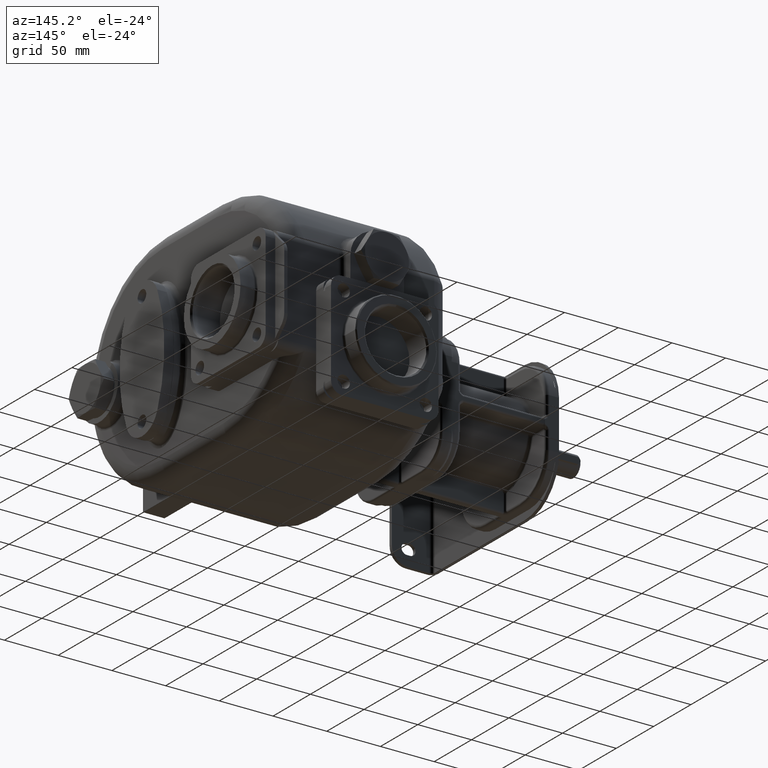
[diagram: clean part render]
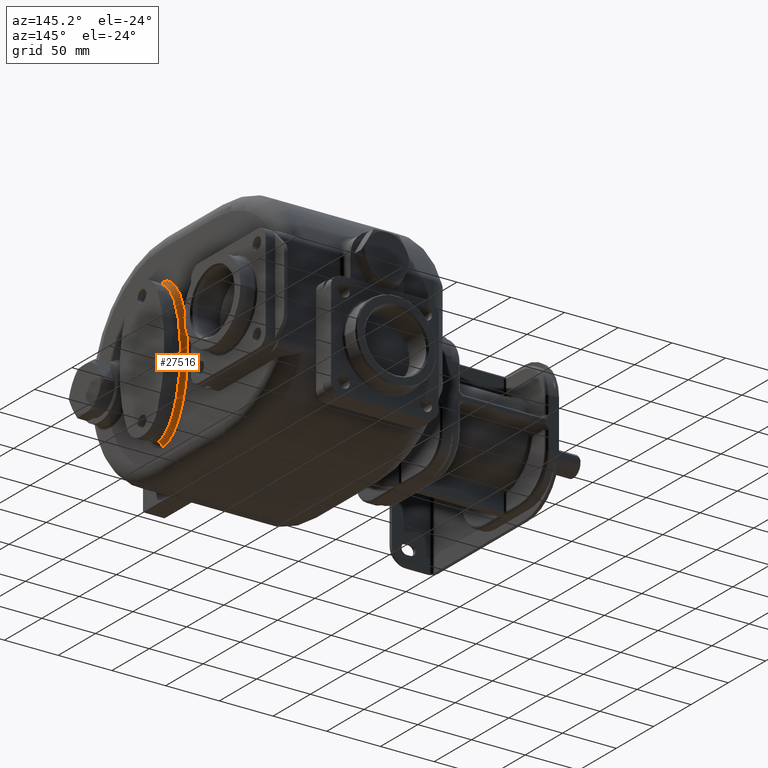
[diagram: same view with one face highlighted and labeled with its STEP entity id]
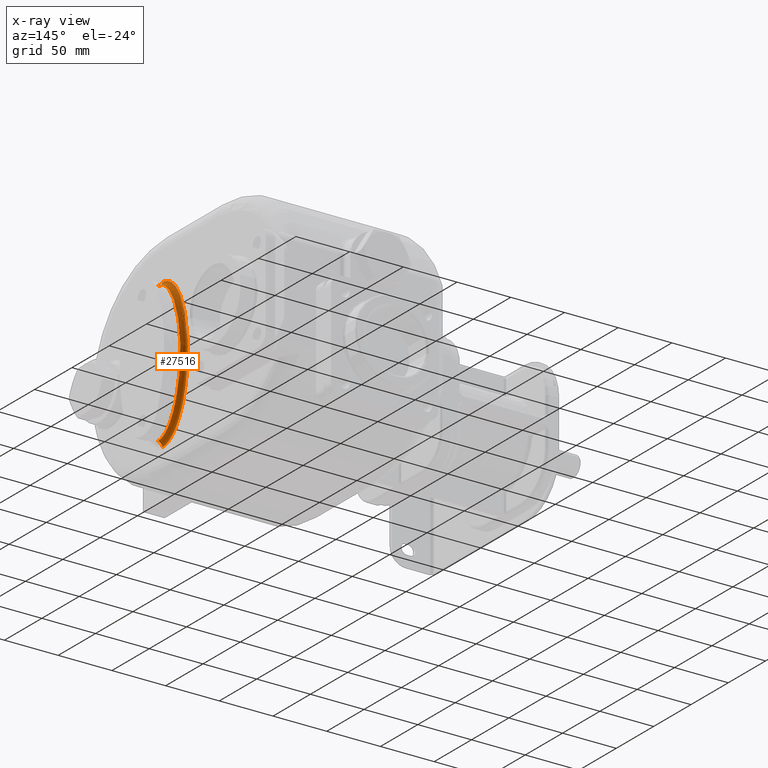
[diagram: x-ray of the same camera — body ghosted, the highlighted face saturated]
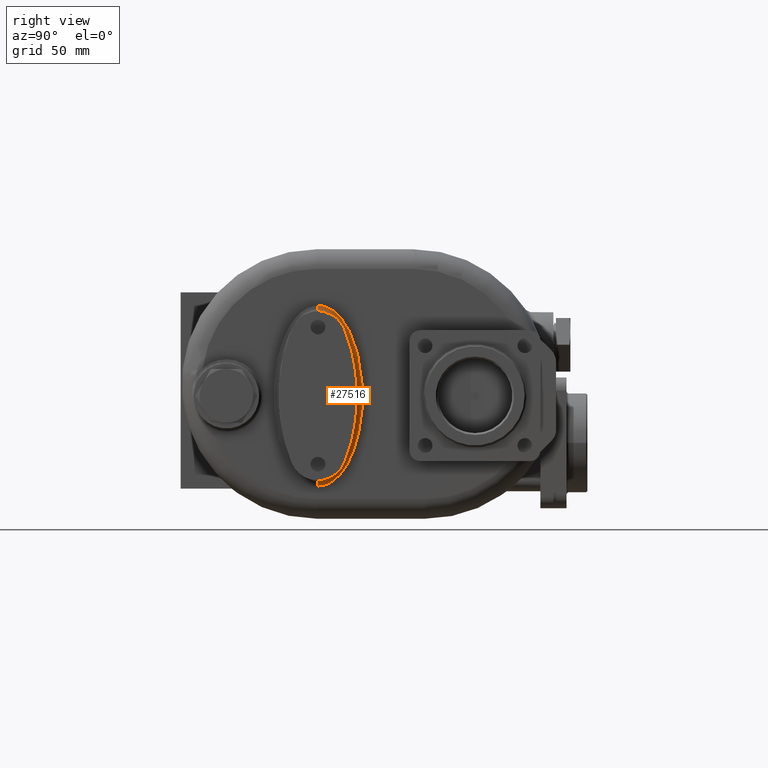
[diagram: same view with one face highlighted and labeled with its STEP entity id]
A machine part, auxiliary view. The second image highlights one B-rep face of the part: STEP entity #27516.
The next image is the same camera in x-ray: the body ghosted, the highlighted face saturated — about 3% of this face is hidden behind the body in this view.
A second angle (right view) of the same face is appended — the face is thin or edge-on in the first view.
In plain terms, the highlighted face is a freeform B-spline surface patch.
Its self-contained STEP definition (entity closure, byte-faithful):
#1393=CARTESIAN_POINT('',(6.500000605490E1,1.049999999998E2,-7.799999999999E1));
#1394=CARTESIAN_POINT('',(6.500000982799E1,1.052155925374E2,-7.799999324540E1));
#1395=CARTESIAN_POINT('',(6.499999543882E1,1.056477687029E2,-7.799215436685E1));
#1396=CARTESIAN_POINT('',(6.500000122217E1,1.062991972596E2,-7.795668439017E1));
#1397=CARTESIAN_POINT('',(6.499999967252E1,1.069532170609E2,-7.789701429391E1));
#1398=CARTESIAN_POINT('',(6.500000008775E1,1.076094791994E2,-7.781288627275E1));
#1399=CARTESIAN_POINT('',(6.499999997649E1,1.082676057595E2,-7.770401723020E1));
#1400=CARTESIAN_POINT('',(6.500000000630E1,1.089270116130E2,-7.757005700289E1));
#1401=CARTESIAN_POINT('',(6.499999999831E1,1.095878201946E2,-7.741071160657E1));
#1402=CARTESIAN_POINT('',(6.500000000045E1,1.102509406989E2,-7.722529776855E1));
#1403=CARTESIAN_POINT('',(6.499999999988E1,1.109170278575E2,-7.701293752961E1));
#1404=CARTESIAN_POINT('',(6.500000000003E1,1.115865085542E2,-7.677284804853E1));
#1405=CARTESIAN_POINT('',(6.499999999999E1,1.122594598852E2,-7.650414907466E1));
#1406=CARTESIAN_POINT('',(6.5E1,1.129360017016E2,-7.620589348576E1));
#1407=CARTESIAN_POINT('',(6.5E1,1.136167210164E2,-7.587685485626E1));
#1408=CARTESIAN_POINT('',(6.5E1,1.143019401775E2,-7.551569735789E1));
#1409=CARTESIAN_POINT('',(6.5E1,1.149921124260E2,-7.512094002369E1));
#1410=CARTESIAN_POINT('',(6.5E1,1.156874352251E2,-7.469103283255E1));
#1411=CARTESIAN_POINT('',(6.5E1,1.163881995658E2,-7.422423077920E1));
#1412=CARTESIAN_POINT('',(6.5E1,1.170948231703E2,-7.371853408233E1));
#1413=CARTESIAN_POINT('',(6.5E1,1.178074195322E2,-7.317194300692E1));
#1414=CARTESIAN_POINT('',(6.5E1,1.185263532657E2,-7.258203679611E1));
#1415=CARTESIAN_POINT('',(6.5E1,1.192516808477E2,-7.194649755355E1));
#1416=CARTESIAN_POINT('',(6.5E1,1.199835067926E2,-7.126262093136E1));
#1417=CARTESIAN_POINT('',(6.5E1,1.207219715645E2,-7.052748177867E1));
#1418=CARTESIAN_POINT('',(6.5E1,1.214668941949E2,-6.973824102419E1));
#1419=CARTESIAN_POINT('',(6.5E1,1.222182558779E2,-6.889137861038E1));
#1420=CARTESIAN_POINT('',(6.5E1,1.229757829741E2,-6.798367554152E1));
#1421=CARTESIAN_POINT('',(6.5E1,1.237390348464E2,-6.701144852035E1));
#1422=CARTESIAN_POINT('',(6.5E1,1.245075378165E2,-6.597086968911E1));
#1423=CARTESIAN_POINT('',(6.5E1,1.252805120188E2,-6.485820681094E1));
#1424=CARTESIAN_POINT('',(6.5E1,1.260570056214E2,-6.366936643590E1));
#1425=CARTESIAN_POINT('',(6.5E1,1.268358565197E2,-6.240049817081E1));
#1426=CARTESIAN_POINT('',(6.5E1,1.276156446312E2,-6.104747927529E1));
#1427=CARTESIAN_POINT('',(6.5E1,1.283947195814E2,-5.960641308834E1));
#1428=CARTESIAN_POINT('',(6.5E1,1.291711439499E2,-5.807344070977E1));
#1429=CARTESIAN_POINT('',(6.5E1,1.299426483078E2,-5.644494210688E1));
#1430=CARTESIAN_POINT('',(6.5E1,1.307067510759E2,-5.471758015804E1));
#1431=CARTESIAN_POINT('',(6.5E1,1.314605697403E2,-5.288838347043E1));
#1432=CARTESIAN_POINT('',(6.5E1,1.322009773245E2,-5.095489854865E1));
#1433=CARTESIAN_POINT('',(6.5E1,1.329245514087E2,-4.891526975424E1));
#1434=CARTESIAN_POINT('',(6.5E1,1.336275343659E2,-4.676842512146E1));
#1435=CARTESIAN_POINT('',(6.5E1,1.343059547161E2,-4.451414660243E1));
#1436=CARTESIAN_POINT('',(6.5E1,1.349556508385E2,-4.215316473372E1));
#1437=CARTESIAN_POINT('',(6.5E1,1.355722568302E2,-3.968734352875E1));
#1438=CARTESIAN_POINT('',(6.5E1,1.361513238074E2,-3.711972158163E1));
#1439=CARTESIAN_POINT('',(6.5E1,1.366884480500E2,-3.445448233698E1));
#1440=CARTESIAN_POINT('',(6.5E1,1.371791882235E2,-3.169728005528E1));
#1441=CARTESIAN_POINT('',(6.5E1,1.376192942945E2,-2.885507965858E1));
#1442=CARTESIAN_POINT('',(6.5E1,1.380048404605E2,-2.593597472646E1));
#1443=CARTESIAN_POINT('',(6.5E1,1.383320751720E2,-2.294961622345E1));
#1444=CARTESIAN_POINT('',(6.5E1,1.385979395171E2,-1.990633110206E1));
#1445=CARTESIAN_POINT('',(6.5E1,1.387996068663E2,-1.681791437702E1));
#1446=CARTESIAN_POINT('',(6.5E1,1.389351637199E2,-1.369649471435E1));
#1447=CARTESIAN_POINT('',(6.5E1,1.390030324500E2,-1.055527218438E1));
#1448=CARTESIAN_POINT('',(6.5E1,1.390026706977E2,-7.407468597686E0));
#1449=CARTESIAN_POINT('',(6.5E1,1.389339143694E2,-4.266630660259E0));
#1450=CARTESIAN_POINT('',(6.5E1,1.387976871524E2,-1.146130287397E0));
#1451=CARTESIAN_POINT('',(6.5E1,1.385952269358E2,1.941224250835E0));
#1452=CARTESIAN_POINT('',(6.5E1,1.383288268691E2,4.982879671767E0));
#1453=CARTESIAN_POINT('',(6.5E1,1.380009745217E2,7.967619739730E0));
#1454=CARTESIAN_POINT('',(6.5E1,1.376150619340E2,1.088466458850E1));
#1455=CARTESIAN_POINT('',(6.5E1,1.371745783683E2,1.372482280890E1));
#1456=CARTESIAN_POINT('',(6.5E1,1.366836349172E2,1.647978903279E1));
#1457=CARTESIAN_POINT('',(6.5E1,1.361464001245E2,1.914276082490E1));
#1458=CARTESIAN_POINT('',(6.5E1,1.355672646627E2,2.170824347073E1));
#1459=CARTESIAN_POINT('',(6.5E1,1.349507167117E2,2.417191720792E1));
#1460=CARTESIAN_POINT('',(6.5E1,1.343011417835E2,2.653083337424E1));
#1461=CARTESIAN_POINT('',(6.5E1,1.336228873855E2,2.878315820539E1));
#1462=CARTESIAN_POINT('',(6.5E1,1.329201527466E2,3.092812609295E1));
#1463=CARTESIAN_POINT('',(6.5E1,1.321969026488E2,3.296594028761E1));
#1464=CARTESIAN_POINT('',(6.5E1,1.314568502698E2,3.489768765750E1));
#1465=CARTESIAN_POINT('',(6.5E1,1.307034929126E2,3.672518211923E1));
#1466=CARTESIAN_POINT('',(6.5E1,1.299398963504E2,3.845093921227E1));
#1467=CARTESIAN_POINT('',(6.5E1,1.291689125543E2,4.007794861040E1));
#1468=CARTESIAN_POINT('',(6.5E1,1.283930676071E2,4.160956691685E1));
#1469=CARTESIAN_POINT('',(6.5E1,1.276145497205E2,4.304940075916E1));
#1470=CARTESIAN_POINT('',(6.5E1,1.268353643889E2,4.440131609474E1));
#1471=CARTESIAN_POINT('',(6.5E1,1.260570875012E2,4.566920811699E1));
#1472=CARTESIAN_POINT('',(6.5E1,1.252812127050E2,4.685715625991E1));
#1473=CARTESIAN_POINT('',(6.5E1,1.245088397114E2,4.796901704750E1));
#1474=CARTESIAN_POINT('',(6.5E1,1.237410014946E2,4.900887228281E1));
#1475=CARTESIAN_POINT('',(6.5E1,1.229783676688E2,4.998043441568E1));
#1476=CARTESIAN_POINT('',(6.5E1,1.222214487008E2,5.088767984402E1));
#1477=CARTESIAN_POINT('',(6.5E1,1.214707083628E2,5.173405371305E1));
#1478=CARTESIAN_POINT('',(6.5E1,1.207262199780E2,5.252309875354E1));
#1479=CARTESIAN_POINT('',(6.5E1,1.199881894842E2,5.325810841920E1));
#1480=CARTESIAN_POINT('',(6.5E1,1.192566865506E2,5.394194990661E1));
#1481=CARTESIAN_POINT('',(6.5E1,1.185315462927E2,5.457763362588E1));
#1482=CARTESIAN_POINT('',(6.5E1,1.178128204989E2,5.516765385439E1));
#1483=CARTESIAN_POINT('',(6.5E1,1.171002310918E2,5.571452091794E1));
#1484=CARTESIAN_POINT('',(6.5E1,1.163936277826E2,5.622048410734E1));
#1485=CARTESIAN_POINT('',(6.5E1,1.156928132620E2,5.668757967339E1));
#1486=CARTESIAN_POINT('',(6.5E1,1.149974243231E2,5.711777516680E1));
#1487=CARTESIAN_POINT('',(6.5E1,1.143072621020E2,5.751278110338E1));
#1488=CARTESIAN_POINT('',(6.5E1,1.136218815344E2,5.787424373169E1));
#1489=CARTESIAN_POINT('',(6.5E1,1.129410654299E2,5.820355935370E1));
#1490=CARTESIAN_POINT('',(6.499999999999E1,1.122644388980E2,5.850205448382E1));
#1491=CARTESIAN_POINT('',(6.500000000003E1,1.115916107099E2,5.877091179680E1));
#1492=CARTESIAN_POINT('',(6.499999999990E1,1.109220701535E2,5.901125081435E1));
#1493=CARTESIAN_POINT('',(6.500000000038E1,1.102555824775E2,5.922389072662E1));
#1494=CARTESIAN_POINT('',(6.499999999857E1,1.095921325996E2,5.940961617469E1));
#1495=CARTESIAN_POINT('',(6.500000000532E1,1.089312601714E2,5.956911818270E1));
#1496=CARTESIAN_POINT('',(6.499999998014E1,1.082721673371E2,5.970315179226E1));
#1497=CARTESIAN_POINT('',(6.500000007412E1,1.076139775099E2,5.981225668201E1));
#1498=CARTESIAN_POINT('',(6.499999972340E1,1.069571167028E2,5.989658928903E1));
#1499=CARTESIAN_POINT('',(6.500000103230E1,1.063021214023E2,5.995648421259E1));
#1500=CARTESIAN_POINT('',(6.499999614739E1,1.056493777001E2,5.999213235722E1));
#1501=CARTESIAN_POINT('',(6.500000830122E1,1.052161597828E2,5.999999608092E1));
#1502=CARTESIAN_POINT('',(6.500000605490E1,1.050000000002E2,5.999999999999E1));
#10553=CARTESIAN_POINT('',(6.9E1,1.049999997994E2,-7.799999073928E1));
#10554=DIRECTION('',(0.E0,1.E0,-8.983232534644E-8));
#10555=DIRECTION('',(-9.999999999973E-1,-2.096103390072E-13,
-2.315180424769E-6));
#10556=AXIS2_PLACEMENT_3D('',#10553,#10554,#10555);
#10558=CARTESIAN_POINT('',(6.9E1,1.050000002006E2,5.999999073928E1));
#10559=DIRECTION('',(0.E0,-1.E0,8.983232444178E-8));
#10560=DIRECTION('',(-9.999999999973E-1,2.096103390072E-13,2.315180422992E-6));
#10561=AXIS2_PLACEMENT_3D('',#10558,#10559,#10560);
#10731=CARTESIAN_POINT('',(6.9E1,1.049999999999E2,-7.399999747359E1));
#10732=CARTESIAN_POINT('',(6.9E1,1.059817477042E2,-7.399999747359E1));
#10733=CARTESIAN_POINT('',(6.9E1,1.079452413556E2,-7.379100386859E1));
#10734=CARTESIAN_POINT('',(6.9E1,1.108621189585E2,-7.285353365170E1));
#10735=CARTESIAN_POINT('',(6.9E1,1.137225407734E2,-7.130112088187E1));
#10736=CARTESIAN_POINT('',(6.9E1,1.164989598537E2,-6.914871375640E1));
#10737=CARTESIAN_POINT('',(6.9E1,1.191646376375E2,-6.641704177195E1));
#10738=CARTESIAN_POINT('',(6.9E1,1.216939022250E2,-6.313241225168E1));
#10739=CARTESIAN_POINT('',(6.9E1,1.240623954062E2,-5.932645801934E1));
#10740=CARTESIAN_POINT('',(6.9E1,1.262473072997E2,-5.503583248243E1));
#10741=CARTESIAN_POINT('',(6.9E1,1.282275960087E2,-5.030185671368E1));
#10742=CARTESIAN_POINT('',(6.9E1,1.299841902708E2,-4.517012148669E1));
#10743=CARTESIAN_POINT('',(6.9E1,1.315001731227E2,-3.969004821723E1));
#10744=CARTESIAN_POINT('',(6.9E1,1.327609448211E2,-3.391441300654E1));
#10745=CARTESIAN_POINT('',(6.9E1,1.337543634451E2,-2.789883837900E1));
#10746=CARTESIAN_POINT('',(6.9E1,1.344708618304E2,-2.170125760671E1));
#10747=CARTESIAN_POINT('',(6.9E1,1.349035397059E2,-1.538135678045E1));
#10748=CARTESIAN_POINT('',(6.9E1,1.350482301471E2,-9.E0));
#10749=CARTESIAN_POINT('',(6.9E1,1.349035397059E2,-2.618643219545E0));
#10750=CARTESIAN_POINT('',(6.9E1,1.344708618304E2,3.701257606709E0));
#10751=CARTESIAN_POINT('',(6.9E1,1.337543634451E2,9.898838378998E0));
#10752=CARTESIAN_POINT('',(6.9E1,1.327609448211E2,1.591441300654E1));
#10753=CARTESIAN_POINT('',(6.9E1,1.315001731227E2,2.169004821723E1));
#10754=CARTESIAN_POINT('',(6.9E1,1.299841902708E2,2.717012148669E1));
#10755=CARTESIAN_POINT('',(6.9E1,1.282275960087E2,3.230185671368E1));
#10756=CARTESIAN_POINT('',(6.9E1,1.262473072997E2,3.703583248243E1));
#10757=CARTESIAN_POINT('',(6.9E1,1.240623954062E2,4.132645801934E1));
#10758=CARTESIAN_POINT('',(6.9E1,1.216939022250E2,4.513241225168E1));
#10759=CARTESIAN_POINT('',(6.9E1,1.191646376375E2,4.841704177195E1));
#10760=CARTESIAN_POINT('',(6.9E1,1.164989598537E2,5.114871375640E1));
#10761=CARTESIAN_POINT('',(6.9E1,1.137225407734E2,5.330112088187E1));
#10762=CARTESIAN_POINT('',(6.9E1,1.108621189585E2,5.485353365170E1));
#10763=CARTESIAN_POINT('',(6.9E1,1.079452413555E2,5.579100386859E1));
#10764=CARTESIAN_POINT('',(6.9E1,1.059817477043E2,5.599999747359E1));
#10765=CARTESIAN_POINT('',(6.9E1,1.050000000001E2,5.599999747359E1));
#12011=VERTEX_POINT('',#1393);
#12012=VERTEX_POINT('',#1502);
#12013=VERTEX_POINT('',#10731);
#12014=VERTEX_POINT('',#10765);
#27274=CARTESIAN_POINT('',(6.500248282680E1,1.033212168473E2,
-7.804671588488E1));
#27275=CARTESIAN_POINT('',(6.500199962564E1,1.037606513178E2,
-7.808828022674E1));
#27276=CARTESIAN_POINT('',(6.500195779760E1,1.048025440540E2,
-7.814751713292E1));
#27277=CARTESIAN_POINT('',(6.500197929078E1,1.064815572329E2,
-7.809636915477E1));
#27278=CARTESIAN_POINT('',(6.500197263480E1,1.083456438902E2,
-7.784676049630E1));
#27279=CARTESIAN_POINT('',(6.500197447178E1,1.101954932067E2,
-7.740088486873E1));
#27280=CARTESIAN_POINT('',(6.500197399458E1,1.119500727428E2,
-7.679070660139E1));
#27281=CARTESIAN_POINT('',(6.500197411678E1,1.136359023328E2,
-7.603149758100E1));
#27282=CARTESIAN_POINT('',(6.500197408131E1,1.153165779682E2,
-7.509904471573E1));
#27283=CARTESIAN_POINT('',(6.500197409222E1,1.170538258888E2,
-7.393595444612E1));
#27284=CARTESIAN_POINT('',(6.500197408886E1,1.188499572240E2,
-7.250601408441E1));
#27285=CARTESIAN_POINT('',(6.500197408991E1,1.207021729971E2,
-7.076975351396E1));
#27286=CARTESIAN_POINT('',(6.500197408958E1,1.225628277091E2,
-6.872669031441E1));
#27287=CARTESIAN_POINT('',(6.500197408968E1,1.243425283940E2,
-6.645580954618E1));
#27288=CARTESIAN_POINT('',(6.500197408965E1,1.259738616418E2,
-6.407006930361E1));
#27289=CARTESIAN_POINT('',(6.500197408966E1,1.274497219691E2,
-6.162921936039E1));
#27290=CARTESIAN_POINT('',(6.500197408966E1,1.288067934397E2,
-5.911315984772E1));
#27291=CARTESIAN_POINT('',(6.500197408966E1,1.300789810040E2,
-5.647941452673E1));
#27292=CARTESIAN_POINT('',(6.500197408966E1,1.312793159181E2,
-5.370478828814E1));
#27293=CARTESIAN_POINT('',(6.500197408966E1,1.324060475833E2,
-5.079197626195E1));
#27294=CARTESIAN_POINT('',(6.500197408966E1,1.334601826761E2,
-4.773713178649E1));
#27295=CARTESIAN_POINT('',(6.500197408966E1,1.344520978741E2,
-4.449828057722E1));
#27296=CARTESIAN_POINT('',(6.500197408966E1,1.353937408943E2,
-4.099815967743E1));
#27297=CARTESIAN_POINT('',(6.500197408966E1,1.362868462958E2,
-3.715413221903E1));
#27298=CARTESIAN_POINT('',(6.500197408966E1,1.371203444851E2,
-3.288794104837E1));
#27299=CARTESIAN_POINT('',(6.500197408966E1,1.378703929462E2,
-2.812695800619E1));
#27300=CARTESIAN_POINT('',(6.500197408966E1,1.384977567070E2,
-2.282358354789E1));
#27301=CARTESIAN_POINT('',(6.500197408966E1,1.389471621677E2,
-1.700479059842E1));
#27302=CARTESIAN_POINT('',(6.500197408966E1,1.391615881833E2,
-1.078526232386E1));
#27303=CARTESIAN_POINT('',(6.500197408966E1,1.391002587403E2,
-4.385363077854E0));
#27304=CARTESIAN_POINT('',(6.500197408966E1,1.387586856336E2,1.900438558048E0));
#27305=CARTESIAN_POINT('',(6.500197408966E1,1.381796676723E2,7.772595247253E0));
#27306=CARTESIAN_POINT('',(6.500197408966E1,1.374345039116E2,1.305318177318E1));
#27307=CARTESIAN_POINT('',(6.500197408966E1,1.365881870796E2,1.771476377697E1));
#27308=CARTESIAN_POINT('',(6.500197408966E1,1.356810315007E2,2.183156175342E1));
#27309=CARTESIAN_POINT('',(6.500197408966E1,1.347335539835E2,2.550314407123E1));
#27310=CARTESIAN_POINT('',(6.500197408966E1,1.337456785207E2,2.884603610943E1));
#27311=CARTESIAN_POINT('',(6.500197408966E1,1.326979822681E2,3.198245799636E1));
#27312=CARTESIAN_POINT('',(6.500197408966E1,1.315676213551E2,3.499330813208E1));
#27313=CARTESIAN_POINT('',(6.500197408966E1,1.303467091218E2,3.789068451743E1));
#27314=CARTESIAN_POINT('',(6.500197408966E1,1.290440528614E2,4.064694125064E1));
#27315=CARTESIAN_POINT('',(6.500197408966E1,1.276664605603E2,4.324770877199E1));
#27316=CARTESIAN_POINT('',(6.500197408966E1,1.261947225027E2,4.572286729020E1));
#27317=CARTESIAN_POINT('',(6.500197408965E1,1.245874788135E2,4.811645651710E1));
#27318=CARTESIAN_POINT('',(6.500197408967E1,1.228306689255E2,5.040557538404E1));
#27319=CARTESIAN_POINT('',(6.500197408961E1,1.209786081491E2,5.248606203173E1));
#27320=CARTESIAN_POINT('',(6.500197408982E1,1.191317952981E2,5.425858663170E1));
#27321=CARTESIAN_POINT('',(6.500197408914E1,1.173619705420E2,5.570526979621E1));
#27322=CARTESIAN_POINT('',(6.500197409129E1,1.156792299039E2,5.687032628655E1));
#27323=CARTESIAN_POINT('',(6.500197408448E1,1.140863473963E2,5.779543750616E1));
#27324=CARTESIAN_POINT('',(6.500197410650E1,1.125581774713E2,5.853113500037E1));
#27325=CARTESIAN_POINT('',(6.500197402736E1,1.110258956318E2,5.912809565737E1));
#27326=CARTESIAN_POINT('',(6.500197433549E1,1.094311295798E2,5.960205199349E1));
#27327=CARTESIAN_POINT('',(6.500197317459E1,1.077777725761E2,5.993660866072E1));
#27328=CARTESIAN_POINT('',(6.500197737760E1,1.061253048811E2,6.011537375596E1));
#27329=CARTESIAN_POINT('',(6.500196364983E1,1.046385213690E2,6.014016049656E1));
#27330=CARTESIAN_POINT('',(6.500199032430E1,1.037122348061E2,6.008371792264E1));
#27331=CARTESIAN_POINT('',(6.500229142172E1,1.033229369943E2,6.004705051691E1));
#27332=CARTESIAN_POINT('',(6.492516547281E1,1.035504331358E2,
-7.559718693726E1));
#27333=CARTESIAN_POINT('',(6.492467292589E1,1.039301907743E2,
-7.563301880649E1));
#27334=CARTESIAN_POINT('',(6.492463028884E1,1.048296882386E2,
-7.568412880949E1));
#27335=CARTESIAN_POINT('',(6.492465219773E1,1.062785068317E2,
-7.564002488060E1));
#27336=CARTESIAN_POINT('',(6.492464541302E1,1.078908947770E2,
-7.542428880826E1));
#27337=CARTESIAN_POINT('',(6.492464728552E1,1.094997097477E2,
-7.503680565239E1));
#27338=CARTESIAN_POINT('',(6.492464679909E1,1.110375392222E2,
-7.450234871804E1));
#27339=CARTESIAN_POINT('',(6.492464692366E1,1.125282181379E2,
-7.383136111158E1));
#27340=CARTESIAN_POINT('',(6.492464688750E1,1.140287057494E2,
-7.299929062376E1));
#27341=CARTESIAN_POINT('',(6.492464689862E1,1.155962442132E2,
-7.195033747174E1));
#27342=CARTESIAN_POINT('',(6.492464689520E1,1.172349859706E2,
-7.064630187862E1));
#27343=CARTESIAN_POINT('',(6.492464689627E1,1.189437475844E2,
-6.904521558802E1));
#27344=CARTESIAN_POINT('',(6.492464689593E1,1.206788006896E2,
-6.714083839578E1));
#27345=CARTESIAN_POINT('',(6.492464689603E1,1.223543571162E2,
-6.500352898918E1));
#27346=CARTESIAN_POINT('',(6.492464689601E1,1.239023523224E2,
-6.274017761436E1));
#27347=CARTESIAN_POINT('',(6.492464689601E1,1.253116228776E2,
-6.040984167923E1));
#27348=CARTESIAN_POINT('',(6.492464689601E1,1.266140566826E2,
-5.799539110341E1));
#27349=CARTESIAN_POINT('',(6.492464689601E1,1.278401862197E2,
-5.545726681263E1));
#27350=CARTESIAN_POINT('',(6.492464689601E1,1.290012159706E2,
-5.277374302687E1));
#27351=CARTESIAN_POINT('',(6.492464689601E1,1.300943700330E2,
-4.994795826714E1));
#27352=CARTESIAN_POINT('',(6.492464689601E1,1.311197120820E2,
-4.697675708667E1));
#27353=CARTESIAN_POINT('',(6.492464689601E1,1.320866371735E2,
-4.381970103345E1));
#27354=CARTESIAN_POINT('',(6.492464689601E1,1.330062897544E2,
-4.040152455470E1));
#27355=CARTESIAN_POINT('',(6.492464689601E1,1.338799785669E2,
-3.664129642744E1));
#27356=CARTESIAN_POINT('',(6.492464689601E1,1.346965297991E2,
-3.246211196022E1));
#27357=CARTESIAN_POINT('',(6.492464689601E1,1.354322319730E2,
-2.779251055061E1));
#27358=CARTESIAN_POINT('',(6.492464689601E1,1.360482166878E2,
-2.258571746193E1));
#27359=CARTESIAN_POINT('',(6.492464689601E1,1.364898043720E2,
-1.686862052294E1));
#27360=CARTESIAN_POINT('',(6.492464689601E1,1.367005957790E2,
-1.075506214201E1));
#27361=CARTESIAN_POINT('',(6.492464689601E1,1.366402995553E2,
-4.463549351902E0));
#27362=CARTESIAN_POINT('',(6.492464689601E1,1.363045686905E2,1.714158019871E0));
#27363=CARTESIAN_POINT('',(6.492464689601E1,1.357358160987E2,7.481694213619E0));
#27364=CARTESIAN_POINT('',(6.492464689601E1,1.350045627809E2,1.266329357284E1));
#27365=CARTESIAN_POINT('',(6.492464689601E1,1.341750488587E2,1.723199653513E1));
#27366=CARTESIAN_POINT('',(6.492464689601E1,1.332871733804E2,2.126103352628E1));
#27367=CARTESIAN_POINT('',(6.492464689601E1,1.323613420548E2,2.484851121949E1));
#27368=CARTESIAN_POINT('',(6.492464689601E1,1.313978090594E2,2.810882763565E1));
#27369=CARTESIAN_POINT('',(6.492464689601E1,1.303780767362E2,3.116133155841E1));
#27370=CARTESIAN_POINT('',(6.492464689601E1,1.292806078464E2,3.408434005658E1));
#27371=CARTESIAN_POINT('',(6.492464689601E1,1.280987600349E2,3.688874454899E1));
#27372=CARTESIAN_POINT('',(6.492464689601E1,1.268423004751E2,3.954695841162E1));
#27373=CARTESIAN_POINT('',(6.492464689601E1,1.255191844979E2,4.204455194273E1));
#27374=CARTESIAN_POINT('',(6.492464689601E1,1.241127356729E2,4.440952557978E1));
#27375=CARTESIAN_POINT('',(6.492464689601E1,1.225861131591E2,4.668256650985E1));
#27376=CARTESIAN_POINT('',(6.492464689603E1,1.209300167409E2,4.883980256564E1));
#27377=CARTESIAN_POINT('',(6.492464689596E1,1.192003743345E2,5.078199942020E1));
#27378=CARTESIAN_POINT('',(6.492464689618E1,1.174938436396E2,5.241917743694E1));
#27379=CARTESIAN_POINT('',(6.492464689549E1,1.158762584665E2,5.374083648321E1));
#27380=CARTESIAN_POINT('',(6.492464689768E1,1.143547714930E2,5.479377414074E1));
#27381=CARTESIAN_POINT('',(6.492464689073E1,1.129292170081E2,5.562133838692E1));
#27382=CARTESIAN_POINT('',(6.492464691318E1,1.115741141696E2,5.627344779597E1));
#27383=CARTESIAN_POINT('',(6.492464683251E1,1.102263923422E2,5.679827178648E1));
#27384=CARTESIAN_POINT('',(6.492464714660E1,1.088340099792E2,5.721185367827E1));
#27385=CARTESIAN_POINT('',(6.492464596325E1,1.073992504411E2,5.750200101226E1));
#27386=CARTESIAN_POINT('',(6.492465024755E1,1.059710480981E2,5.765641048557E1));
#27387=CARTESIAN_POINT('',(6.492463625427E1,1.046881297580E2,5.767778632259E1));
#27388=CARTESIAN_POINT('',(6.492466344466E1,1.038883489342E2,5.762907435695E1));
#27389=CARTESIAN_POINT('',(6.492497036571E1,1.035519193217E2,5.759744119698E1));
#27390=CARTESIAN_POINT('',(6.666555545674E1,1.037125937670E2,
-7.386425092740E1));
#27391=CARTESIAN_POINT('',(6.666527328002E1,1.040501326225E2,
-7.389602731965E1));
#27392=CARTESIAN_POINT('',(6.666524885354E1,1.048488915776E2,
-7.394138788941E1));
#27393=CARTESIAN_POINT('',(6.666526140500E1,1.061348574364E2,
-7.390226732135E1));
#27394=CARTESIAN_POINT('',(6.666525751808E1,1.075691794061E2,
-7.371049464177E1));
#27395=CARTESIAN_POINT('',(6.666525859083E1,1.090074729801E2,
-7.336432163943E1));
#27396=CARTESIAN_POINT('',(6.666525831215E1,1.103919611410E2,
-7.288343428008E1));
#27397=CARTESIAN_POINT('',(6.666525838352E1,1.117445793772E2,
-7.227485951638E1));
#27398=CARTESIAN_POINT('',(6.666525836280E1,1.131175917385E2,
-7.151380522815E1));
#27399=CARTESIAN_POINT('',(6.666525836918E1,1.145650680862E2,
-7.054559916072E1));
#27400=CARTESIAN_POINT('',(6.666525836721E1,1.160924635103E2,
-6.933063575738E1));
#27401=CARTESIAN_POINT('',(6.666525836783E1,1.176997374978E2,
-6.782517943570E1));
#27402=CARTESIAN_POINT('',(6.666525836763E1,1.193459328871E2,
-6.601891660801E1));
#27403=CARTESIAN_POINT('',(6.666525836769E1,1.209478117457E2,
-6.397610317488E1));
#27404=CARTESIAN_POINT('',(6.666525836768E1,1.224368488844E2,
-6.179933664175E1));
#27405=CARTESIAN_POINT('',(6.666525836768E1,1.237990100498E2,
-5.954718459761E1));
#27406=CARTESIAN_POINT('',(6.666525836768E1,1.250627900644E2,
-5.720461795921E1));
#27407=CARTESIAN_POINT('',(6.666525836768E1,1.262563355351E2,
-5.473414142034E1));
#27408=CARTESIAN_POINT('',(6.666525836768E1,1.273895585794E2,
-5.211506868802E1));
#27409=CARTESIAN_POINT('',(6.666525836768E1,1.284589579371E2,
-4.935085196325E1));
#27410=CARTESIAN_POINT('',(6.666525836768E1,1.294639301503E2,
-4.643882480397E1));
#27411=CARTESIAN_POINT('',(6.666525836768E1,1.304131758201E2,
-4.333963529342E1));
#27412=CARTESIAN_POINT('',(6.666525836768E1,1.313172711143E2,
-3.997943095588E1));
#27413=CARTESIAN_POINT('',(6.666525836768E1,1.321772235280E2,
-3.627848723865E1));
#27414=CARTESIAN_POINT('',(6.666525836768E1,1.329817855195E2,
-3.216085625895E1));
#27415=CARTESIAN_POINT('',(6.666525836768E1,1.337073383144E2,
-2.755590341039E1));
#27416=CARTESIAN_POINT('',(6.666525836768E1,1.343152728454E2,
-2.241743747231E1));
#27417=CARTESIAN_POINT('',(6.666525836768E1,1.347513297901E2,
-1.677228607157E1));
#27418=CARTESIAN_POINT('',(6.666525836768E1,1.349595498683E2,
-1.073369681678E1));
#27419=CARTESIAN_POINT('',(6.666525836768E1,1.348999846027E2,
-4.518862766306E0));
#27420=CARTESIAN_POINT('',(6.666525836768E1,1.345683868719E2,1.582372578896E0));
#27421=CARTESIAN_POINT('',(6.666525836768E1,1.340068965860E2,7.275894287482E0));
#27422=CARTESIAN_POINT('',(6.666525836768E1,1.332854843062E2,1.238746449850E1));
#27423=CARTESIAN_POINT('',(6.666525836768E1,1.324678577174E2,1.689045954755E1));
#27424=CARTESIAN_POINT('',(6.666525836768E1,1.315936220781E2,2.085740942933E1));
#27425=CARTESIAN_POINT('',(6.666525836768E1,1.306831044988E2,2.438538673055E1));
#27426=CARTESIAN_POINT('',(6.666525836768E1,1.297367927486E2,2.758728445803E1));
#27427=CARTESIAN_POINT('',(6.666525836768E1,1.287368436984E2,3.058042004301E1));
#27428=CARTESIAN_POINT('',(6.666525836768E1,1.276626444955E2,3.344128437382E1));
#27429=CARTESIAN_POINT('',(6.666525836768E1,1.265084330765E2,3.617991526460E1));
#27430=CARTESIAN_POINT('',(6.666525836768E1,1.252846556884E2,3.876876802779E1));
#27431=CARTESIAN_POINT('',(6.666525836768E1,1.240000793592E2,4.119337041373E1));
#27432=CARTESIAN_POINT('',(6.666525836768E1,1.226398198484E2,4.348039300290E1));
#27433=CARTESIAN_POINT('',(6.666525836768E1,1.211702333366E2,4.566815121578E1));
#27434=CARTESIAN_POINT('',(6.666525836769E1,1.195853873515E2,4.773208587468E1));
#27435=CARTESIAN_POINT('',(6.666525836765E1,1.179423506585E2,4.957644866912E1));
#27436=CARTESIAN_POINT('',(6.666525836778E1,1.163350635345E2,5.111787481973E1));
#27437=CARTESIAN_POINT('',(6.666525836738E1,1.148251812957E2,5.235108469833E1));
#27438=CARTESIAN_POINT('',(6.666525836863E1,1.134177743303E2,5.332470312064E1));
#27439=CARTESIAN_POINT('',(6.666525836465E1,1.121105971997E2,5.408325709320E1));
#27440=CARTESIAN_POINT('',(6.666525837752E1,1.108779318554E2,5.467623153962E1));
#27441=CARTESIAN_POINT('',(6.666525833130E1,1.096607782709E2,5.515002195199E1));
#27442=CARTESIAN_POINT('',(6.666525851124E1,1.084115736332E2,5.552089153015E1));
#27443=CARTESIAN_POINT('',(6.666525783331E1,1.071314623674E2,5.577962117756E1));
#27444=CARTESIAN_POINT('',(6.666526028775E1,1.058619180818E2,5.591680009952E1));
#27445=CARTESIAN_POINT('',(6.666525227110E1,1.047232255522E2,5.593576286948E1));
#27446=CARTESIAN_POINT('',(6.666526784828E1,1.040129420788E2,5.589251997555E1));
#27447=CARTESIAN_POINT('',(6.666544368123E1,1.037139144355E2,5.586444832717E1));
#27448=CARTESIAN_POINT('',(6.912562725516E1,1.037053903425E2,
-7.394123060873E1));
#27449=CARTESIAN_POINT('',(6.912564244040E1,1.040448046212E2,
-7.397318715151E1));
#27450=CARTESIAN_POINT('',(6.912564375490E1,1.048480385358E2,
-7.401880311993E1));
#27451=CARTESIAN_POINT('',(6.912564307945E1,1.061412385633E2,
-7.397946118332E1));
#27452=CARTESIAN_POINT('',(6.912564328862E1,1.075834704974E2,
-7.378662401301E1));
#27453=CARTESIAN_POINT('',(6.912564323089E1,1.090293388940E2,
-7.343861595015E1));
#27454=CARTESIAN_POINT('',(6.912564324589E1,1.104206387117E2,
-7.295534894792E1));
#27455=CARTESIAN_POINT('',(6.912564324205E1,1.117793898156E2,
-7.234400170981E1));
#27456=CARTESIAN_POINT('',(6.912564324316E1,1.131580648234E2,
-7.157979277283E1));
#27457=CARTESIAN_POINT('',(6.912564324282E1,1.146108745149E2,
-7.060799979578E1));
#27458=CARTESIAN_POINT('',(6.912564324293E1,1.161432161142E2,
-6.938907966886E1));
#27459=CARTESIAN_POINT('',(6.912564324289E1,1.177549983381E2,
-6.787937531696E1));
#27460=CARTESIAN_POINT('',(6.912564324290E1,1.194051409237E2,
-6.606875409838E1));
#27461=CARTESIAN_POINT('',(6.912564324290E1,1.210102926532E2,
-6.402174300885E1));
#27462=CARTESIAN_POINT('',(6.912564324290E1,1.225019487998E2,
-6.184113024396E1));
#27463=CARTESIAN_POINT('',(6.912564324290E1,1.238662026367E2,
-5.958550515121E1));
#27464=CARTESIAN_POINT('',(6.912564324290E1,1.251316997122E2,
-5.723974531782E1));
#27465=CARTESIAN_POINT('',(6.912564324290E1,1.263266926171E2,
-5.476626376182E1));
#27466=CARTESIAN_POINT('',(6.912564324290E1,1.274611508781E2,
-5.214432801463E1));
#27467=CARTESIAN_POINT('',(6.912564324290E1,1.285316054563E2,
-4.937737634311E1));
#27468=CARTESIAN_POINT('',(6.912564324290E1,1.295374825289E2,
-4.646272058285E1));
#27469=CARTESIAN_POINT('',(6.912564324290E1,1.304875135458E2,
-4.336096055153E1));
#27470=CARTESIAN_POINT('',(6.912564324290E1,1.313922999185E2,
-3.999818100236E1));
#27471=CARTESIAN_POINT('',(6.912564324290E1,1.322528625242E2,
-3.629460378050E1));
#27472=CARTESIAN_POINT('',(6.912564324290E1,1.330579570962E2,
-3.217423850027E1));
#27473=CARTESIAN_POINT('',(6.912564324290E1,1.337839607421E2,
-2.756641386326E1));
#27474=CARTESIAN_POINT('',(6.912564324290E1,1.343922528747E2,
-2.242491272812E1));
#27475=CARTESIAN_POINT('',(6.912564324290E1,1.348285555033E2,
-1.677656539598E1));
#27476=CARTESIAN_POINT('',(6.912564324290E1,1.350368898039E2,
-1.073464589737E1));
#27477=CARTESIAN_POINT('',(6.912564324290E1,1.349772920680E2,
-4.516405659414E0));
#27478=CARTESIAN_POINT('',(6.912564324290E1,1.346455107371E2,1.588226690758E0));
#27479=CARTESIAN_POINT('',(6.912564324290E1,1.340836978483E2,7.285036236546E0));
#27480=CARTESIAN_POINT('',(6.912564324290E1,1.333618484145E2,1.239971724997E1));
#27481=CARTESIAN_POINT('',(6.912564324290E1,1.325436937721E2,1.690563114553E1));
#27482=CARTESIAN_POINT('',(6.912564324290E1,1.316688522302E2,2.087533903214E1));
#27483=CARTESIAN_POINT('',(6.912564324290E1,1.307576543908E2,2.440595943224E1));
#27484=CARTESIAN_POINT('',(6.912564324290E1,1.298105776463E2,2.761045220767E1));
#27485=CARTESIAN_POINT('',(6.912564324290E1,1.288097497927E2,3.060622502547E1));
#27486=CARTESIAN_POINT('',(6.912564324290E1,1.277345169146E2,3.346984989572E1));
#27487=CARTESIAN_POINT('',(6.912564324290E1,1.265790778445E2,3.621140255099E1));
#27488=CARTESIAN_POINT('',(6.912564324290E1,1.253538486641E2,3.880333644084E1));
#27489=CARTESIAN_POINT('',(6.912564324290E1,1.240675603445E2,4.123118120564E1));
#27490=CARTESIAN_POINT('',(6.912564324290E1,1.227052490334E2,4.352166650018E1));
#27491=CARTESIAN_POINT('',(6.912564324290E1,1.212331288948E2,4.571321310245E1));
#27492=CARTESIAN_POINT('',(6.912564324290E1,1.196451178559E2,4.778129235282E1));
#27493=CARTESIAN_POINT('',(6.912564324290E1,1.179982340040E2,4.963000108660E1));
#27494=CARTESIAN_POINT('',(6.912564324290E1,1.163865383280E2,5.117568068228E1));
#27495=CARTESIAN_POINT('',(6.912564324292E1,1.148718717593E2,5.241281960887E1));
#27496=CARTESIAN_POINT('',(6.912564324285E1,1.134593971846E2,5.338996151353E1));
#27497=CARTESIAN_POINT('',(6.912564324306E1,1.121469615499E2,5.415158102853E1));
#27498=CARTESIAN_POINT('',(6.912564324237E1,1.109088573439E2,5.474718234088E1));
#27499=CARTESIAN_POINT('',(6.912564324486E1,1.096859037174E2,5.522323974324E1));
#27500=CARTESIAN_POINT('',(6.912564323518E1,1.084303389051E2,5.559600666803E1));
#27501=CARTESIAN_POINT('',(6.912564327166E1,1.071433579253E2,5.585613193737E1));
#27502=CARTESIAN_POINT('',(6.912564313957E1,1.058667658048E2,5.599407626691E1));
#27503=CARTESIAN_POINT('',(6.912564357099E1,1.047216665430E2,5.601314622901E1));
#27504=CARTESIAN_POINT('',(6.912564273271E1,1.040074074598E2,5.596966039051E1));
#27505=CARTESIAN_POINT('',(6.912563327032E1,1.037067183636E2,5.594143053431E1));
#27506=(BOUNDED_SURFACE()B_SPLINE_SURFACE(3,3,((#27274,#27275,#27276,#27277,
#27278,#27279,#27280,#27281,#27282,#27283,#27284,#27285,#27286,#27287,#27288,
#27289,#27290,#27291,#27292,#27293,#27294,#27295,#27296,#27297,#27298,#27299,
#27300,#27301,#27302,#27303,#27304,#27305,#27306,#27307,#27308,#27309,#27310,
#27311,#27312,#27313,#27314,#27315,#27316,#27317,#27318,#27319,#27320,#27321,
#27322,#27323,#27324,#27325,#27326,#27327,#27328,#27329,#27330,#27331),(#27332,
#27333,#27334,#27335,#27336,#27337,#27338,#27339,#27340,#27341,#27342,#27343,
#27344,#27345,#27346,#27347,#27348,#27349,#27350,#27351,#27352,#27353,#27354,
#27355,#27356,#27357,#27358,#27359,#27360,#27361,#27362,#27363,#27364,#27365,
#27366,#27367,#27368,#27369,#27370,#27371,#27372,#27373,#27374,#27375,#27376,
#27377,#27378,#27379,#27380,#27381,#27382,#27383,#27384,#27385,#27386,#27387,
#27388,#27389),(#27390,#27391,#27392,#27393,#27394,#27395,#27396,#27397,#27398,
#27399,#27400,#27401,#27402,#27403,#27404,#27405,#27406,#27407,#27408,#27409,
#27410,#27411,#27412,#27413,#27414,#27415,#27416,#27417,#27418,#27419,#27420,
#27421,#27422,#27423,#27424,#27425,#27426,#27427,#27428,#27429,#27430,#27431,
#27432,#27433,#27434,#27435,#27436,#27437,#27438,#27439,#27440,#27441,#27442,
#27443,#27444,#27445,#27446,#27447),(#27448,#27449,#27450,#27451,#27452,#27453,
#27454,#27455,#27456,#27457,#27458,#27459,#27460,#27461,#27462,#27463,#27464,
#27465,#27466,#27467,#27468,#27469,#27470,#27471,#27472,#27473,#27474,#27475,
#27476,#27477,#27478,#27479,#27480,#27481,#27482,#27483,#27484,#27485,#27486,
#27487,#27488,#27489,#27490,#27491,#27492,#27493,#27494,#27495,#27496,#27497,
#27498,#27499,#27500,#27501,#27502,#27503,#27504,#27505)),.UNSPECIFIED.,.F.,.F.,
.F.)B_SPLINE_SURFACE_WITH_KNOTS((4,4),(4,1,1,1,1,1,1,1,1,1,1,1,1,1,1,1,1,1,1,1,
1,1,1,1,1,1,1,1,1,1,1,1,1,1,1,1,1,1,1,1,1,1,1,1,1,1,1,1,1,1,1,1,1,1,1,4),(0.E0,
1.E0),(-7.493519072067E-3,0.E0,1.019113756530E-2,2.092436551320E-2,
3.185677682661E-2,4.250497741863E-2,5.259679018572E-2,6.352595149410E-2,
7.558163837783E-2,8.876693614521E-2,1.034733067091E-1,1.200129352557E-1,
1.374061645340E-1,1.545299753254E-1,1.713908258094E-1,1.882961582531E-1,
2.056829116041E-1,2.238553773332E-1,2.426343463383E-1,2.619174362117E-1,
2.821296460791E-1,3.037938280192E-1,3.274312329859E-1,3.535277508911E-1,
3.825004813237E-1,4.147595451255E-1,4.503430501859E-1,4.883459150251E-1,
5.276520296143E-1,5.664507257460E-1,6.025288188627E-1,6.346439310397E-1,
6.630993477652E-1,6.883351668523E-1,7.109316254627E-1,7.316566486308E-1,
7.512928138913E-1,7.705834886766E-1,7.895877394986E-1,8.078293110116E-1,
8.252889621944E-1,8.422718303689E-1,8.592295222295E-1,8.765715483233E-1,
8.933727274692E-1,9.082971028318E-1,9.214093795772E-1,9.331850770576E-1,
9.437474807877E-1,9.531519125928E-1,9.622817902421E-1,9.718457619048E-1,
9.814715893620E-1,9.909087174802E-1,1.E0,1.006637140763E0),.UNSPECIFIED.)GEOMETRIC_REPRESENTATION_ITEM()RATIONAL_B_SPLINE_SURFACE(((1.187263422745E0,
1.187263422745E0,1.187263422745E0,1.187263422745E0,1.187263422745E0,
1.187263422745E0,1.187263422745E0,1.187263422745E0,1.187263422745E0,
1.187263422745E0,1.187263422745E0,1.187263422745E0,1.187263422745E0,
1.187263422745E0,1.187263422745E0,1.187263422745E0,1.187263422745E0,
1.187263422745E0,1.187263422745E0,1.187263422745E0,1.187263422745E0,
1.187263422745E0,1.187263422745E0,1.187263422745E0,1.187263422745E0,
1.187263422745E0,1.187263422745E0,1.187263422745E0,1.187263422745E0,
1.187263422745E0,1.187263422745E0,1.187263422745E0,1.187263422745E0,
1.187263422745E0,1.187263422745E0,1.187263422745E0,1.187263422745E0,
1.187263422745E0,1.187263422745E0,1.187263422745E0,1.187263422745E0,
1.187263422745E0,1.187263422745E0,1.187263422745E0,1.187263422745E0,
1.187263422745E0,1.187263422745E0,1.187263422745E0,1.187263422745E0,
1.187263422745E0,1.187263422745E0,1.187263422745E0,1.187263422745E0,
1.187263422745E0,1.187263422745E0,1.187263422745E0,1.187263422745E0,
1.187263422745E0),(9.375788590850E-1,9.375788590850E-1,9.375788590850E-1,
9.375788590850E-1,9.375788590850E-1,9.375788590850E-1,9.375788590850E-1,
9.375788590850E-1,9.375788590850E-1,9.375788590850E-1,9.375788590850E-1,
9.375788590850E-1,9.375788590850E-1,9.375788590850E-1,9.375788590850E-1,
9.375788590850E-1,9.375788590850E-1,9.375788590850E-1,9.375788590850E-1,
9.375788590850E-1,9.375788590850E-1,9.375788590850E-1,9.375788590850E-1,
9.375788590850E-1,9.375788590850E-1,9.375788590850E-1,9.375788590850E-1,
9.375788590850E-1,9.375788590850E-1,9.375788590850E-1,9.375788590850E-1,
9.375788590850E-1,9.375788590850E-1,9.375788590850E-1,9.375788590850E-1,
9.375788590850E-1,9.375788590850E-1,9.375788590850E-1,9.375788590850E-1,
9.375788590850E-1,9.375788590850E-1,9.375788590850E-1,9.375788590850E-1,
9.375788590850E-1,9.375788590850E-1,9.375788590850E-1,9.375788590850E-1,
9.375788590850E-1,9.375788590850E-1,9.375788590850E-1,9.375788590850E-1,
9.375788590850E-1,9.375788590850E-1,9.375788590850E-1,9.375788590850E-1,
9.375788590850E-1,9.375788590850E-1,9.375788590850E-1),(9.375788590850E-1,
9.375788590850E-1,9.375788590850E-1,9.375788590850E-1,9.375788590850E-1,
9.375788590850E-1,9.375788590850E-1,9.375788590850E-1,9.375788590850E-1,
9.375788590850E-1,9.375788590850E-1,9.375788590850E-1,9.375788590850E-1,
9.375788590850E-1,9.375788590850E-1,9.375788590850E-1,9.375788590850E-1,
9.375788590850E-1,9.375788590850E-1,9.375788590850E-1,9.375788590850E-1,
9.375788590850E-1,9.375788590850E-1,9.375788590850E-1,9.375788590850E-1,
9.375788590850E-1,9.375788590850E-1,9.375788590850E-1,9.375788590850E-1,
9.375788590850E-1,9.375788590850E-1,9.375788590850E-1,9.375788590850E-1,
9.375788590850E-1,9.375788590850E-1,9.375788590850E-1,9.375788590850E-1,
9.375788590850E-1,9.375788590850E-1,9.375788590850E-1,9.375788590850E-1,
9.375788590850E-1,9.375788590850E-1,9.375788590850E-1,9.375788590850E-1,
9.375788590850E-1,9.375788590850E-1,9.375788590850E-1,9.375788590850E-1,
9.375788590850E-1,9.375788590850E-1,9.375788590850E-1,9.375788590850E-1,
9.375788590850E-1,9.375788590850E-1,9.375788590850E-1,9.375788590850E-1,
9.375788590850E-1),(1.187263422745E0,1.187263422745E0,1.187263422745E0,
1.187263422745E0,1.187263422745E0,1.187263422745E0,1.187263422745E0,
1.187263422745E0,1.187263422745E0,1.187263422745E0,1.187263422745E0,
1.187263422745E0,1.187263422745E0,1.187263422745E0,1.187263422745E0,
1.187263422745E0,1.187263422745E0,1.187263422745E0,1.187263422745E0,
1.187263422745E0,1.187263422745E0,1.187263422745E0,1.187263422745E0,
1.187263422745E0,1.187263422745E0,1.187263422745E0,1.187263422745E0,
1.187263422745E0,1.187263422745E0,1.187263422745E0,1.187263422745E0,
1.187263422745E0,1.187263422745E0,1.187263422745E0,1.187263422745E0,
1.187263422745E0,1.187263422745E0,1.187263422745E0,1.187263422745E0,
1.187263422745E0,1.187263422745E0,1.187263422745E0,1.187263422745E0,
1.187263422745E0,1.187263422745E0,1.187263422745E0,1.187263422745E0,
1.187263422745E0,1.187263422745E0,1.187263422745E0,1.187263422745E0,
1.187263422745E0,1.187263422745E0,1.187263422745E0,1.187263422745E0,
1.187263422745E0,1.187263422745E0,1.187263422745E0)))REPRESENTATION_ITEM('')SURFACE());
#27507=ORIENTED_EDGE('',*,*,#15022,.F.);
#27509=ORIENTED_EDGE('',*,*,#27508,.T.);
#27511=ORIENTED_EDGE('',*,*,#27510,.T.);
#27513=ORIENTED_EDGE('',*,*,#27512,.F.);
#27514=EDGE_LOOP('',(#27507,#27509,#27511,#27513));
#27515=FACE_OUTER_BOUND('',#27514,.F.);
#27516=ADVANCED_FACE('',(#27515),#27506,.F.);
#1503=B_SPLINE_CURVE_WITH_KNOTS('',3,(#1393,#1394,#1395,#1396,#1397,#1398,#1399,
#1400,#1401,#1402,#1403,#1404,#1405,#1406,#1407,#1408,#1409,#1410,#1411,#1412,
#1413,#1414,#1415,#1416,#1417,#1418,#1419,#1420,#1421,#1422,#1423,#1424,#1425,
#1426,#1427,#1428,#1429,#1430,#1431,#1432,#1433,#1434,#1435,#1436,#1437,#1438,
#1439,#1440,#1441,#1442,#1443,#1444,#1445,#1446,#1447,#1448,#1449,#1450,#1451,
#1452,#1453,#1454,#1455,#1456,#1457,#1458,#1459,#1460,#1461,#1462,#1463,#1464,
#1465,#1466,#1467,#1468,#1469,#1470,#1471,#1472,#1473,#1474,#1475,#1476,#1477,
#1478,#1479,#1480,#1481,#1482,#1483,#1484,#1485,#1486,#1487,#1488,#1489,#1490,
#1491,#1492,#1493,#1494,#1495,#1496,#1497,#1498,#1499,#1500,#1501,#1502),
.UNSPECIFIED.,.F.,.F.,(4,1,1,1,1,1,1,1,1,1,1,1,1,1,1,1,1,1,1,1,1,1,1,1,1,1,1,1,
1,1,1,1,1,1,1,1,1,1,1,1,1,1,1,1,1,1,1,1,1,1,1,1,1,1,1,1,1,1,1,1,1,1,1,1,1,1,1,1,
1,1,1,1,1,1,1,1,1,1,1,1,1,1,1,1,1,1,1,1,1,1,1,1,1,1,1,1,1,1,1,1,1,1,1,1,1,1,1,
4),(0.E0,9.345794392523E-3,1.869158878505E-2,2.803738317757E-2,
3.738317757009E-2,4.672897196262E-2,5.607476635514E-2,6.542056074766E-2,
7.476635514019E-2,8.411214953271E-2,9.345794392523E-2,1.028037383178E-1,
1.121495327103E-1,1.214953271028E-1,1.308411214953E-1,1.401869158879E-1,
1.495327102804E-1,1.588785046729E-1,1.682242990654E-1,1.775700934579E-1,
1.869158878505E-1,1.962616822430E-1,2.056074766355E-1,2.149532710280E-1,
2.242990654206E-1,2.336448598131E-1,2.429906542056E-1,2.523364485981E-1,
2.616822429907E-1,2.710280373832E-1,2.803738317757E-1,2.897196261682E-1,
2.990654205607E-1,3.084112149533E-1,3.177570093458E-1,3.271028037383E-1,
3.364485981308E-1,3.457943925234E-1,3.551401869159E-1,3.644859813084E-1,
3.738317757009E-1,3.831775700935E-1,3.925233644860E-1,4.018691588785E-1,
4.112149532710E-1,4.205607476636E-1,4.299065420561E-1,4.392523364486E-1,
4.485981308411E-1,4.579439252336E-1,4.672897196262E-1,4.766355140187E-1,
4.859813084112E-1,4.953271028037E-1,5.046728971963E-1,5.140186915888E-1,
5.233644859813E-1,5.327102803738E-1,5.420560747664E-1,5.514018691589E-1,
5.607476635514E-1,5.700934579439E-1,5.794392523364E-1,5.887850467290E-1,
5.981308411215E-1,6.074766355140E-1,6.168224299065E-1,6.261682242991E-1,
6.355140186916E-1,6.448598130841E-1,6.542056074766E-1,6.635514018692E-1,
6.728971962617E-1,6.822429906542E-1,6.915887850467E-1,7.009345794393E-1,
7.102803738318E-1,7.196261682243E-1,7.289719626168E-1,7.383177570093E-1,
7.476635514019E-1,7.570093457944E-1,7.663551401869E-1,7.757009345794E-1,
7.850467289720E-1,7.943925233645E-1,8.037383177570E-1,8.130841121495E-1,
8.224299065421E-1,8.317757009346E-1,8.411214953271E-1,8.504672897196E-1,
8.598130841121E-1,8.691588785047E-1,8.785046728972E-1,8.878504672897E-1,
8.971962616822E-1,9.065420560748E-1,9.158878504673E-1,9.252336448598E-1,
9.345794392523E-1,9.439252336449E-1,9.532710280374E-1,9.626168224299E-1,
9.719626168224E-1,9.813084112150E-1,9.906542056075E-1,1.E0),.UNSPECIFIED.);
#10557=CIRCLE('',#10556,3.999995573540E0);
#10562=CIRCLE('',#10561,3.999995573540E0);
#10766=B_SPLINE_CURVE_WITH_KNOTS('',3,(#10731,#10732,#10733,#10734,#10735,
#10736,#10737,#10738,#10739,#10740,#10741,#10742,#10743,#10744,#10745,#10746,
#10747,#10748,#10749,#10750,#10751,#10752,#10753,#10754,#10755,#10756,#10757,
#10758,#10759,#10760,#10761,#10762,#10763,#10764,#10765),.UNSPECIFIED.,.F.,.F.,(
4,1,1,1,1,1,1,1,1,1,1,1,1,1,1,1,1,1,1,1,1,1,1,1,1,1,1,1,1,1,1,1,4),(0.E0,
3.125E-2,6.25E-2,9.375E-2,1.25E-1,1.5625E-1,1.875E-1,2.1875E-1,2.5E-1,2.8125E-1,
3.125E-1,3.4375E-1,3.75E-1,4.0625E-1,4.375E-1,4.6875E-1,5.E-1,5.3125E-1,
5.625E-1,5.9375E-1,6.25E-1,6.5625E-1,6.875E-1,7.1875E-1,7.5E-1,7.8125E-1,
8.125E-1,8.4375E-1,8.75E-1,9.0625E-1,9.375E-1,9.6875E-1,1.E0),.UNSPECIFIED.);
#15022=EDGE_CURVE('',#12011,#12012,#1503,.T.);
#27508=EDGE_CURVE('',#12011,#12013,#10557,.T.);
#27510=EDGE_CURVE('',#12013,#12014,#10766,.T.);
#27512=EDGE_CURVE('',#12012,#12014,#10562,.T.);